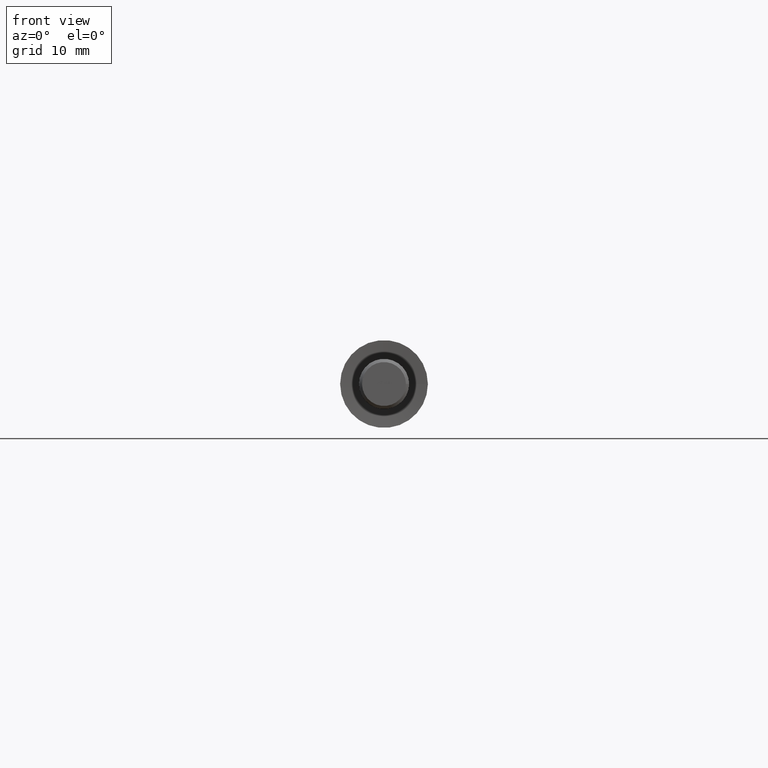
[diagram: clean part render]
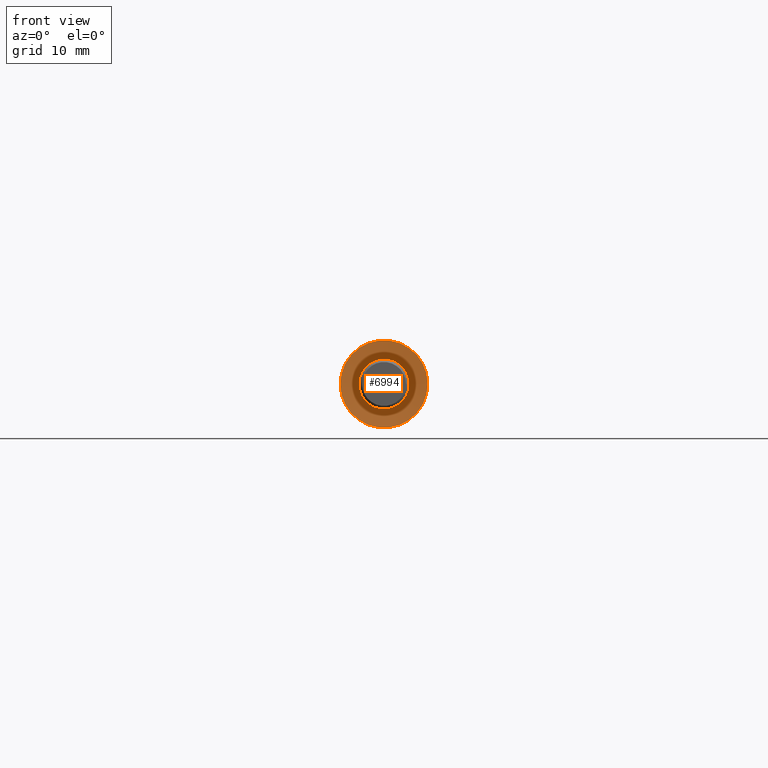
[diagram: same view with one face highlighted and labeled with its STEP entity id]
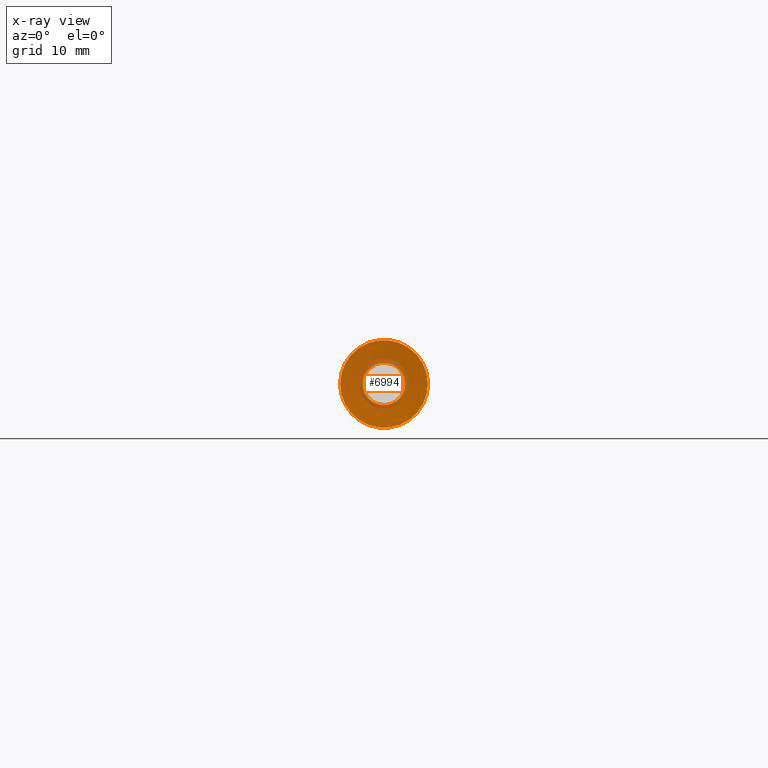
[diagram: x-ray of the same camera — body ghosted, the highlighted face saturated]
A machine part, front view. The second image highlights one B-rep face of the part: STEP entity #6994.
The next image is the same camera in x-ray: the body ghosted, the highlighted face saturated — about 12% of this face is hidden behind the body in this view.
In plain terms, the highlighted conical surface has half-angle 85 deg.
Its self-contained STEP definition (entity closure, byte-faithful):
#89 = CARTESIAN_POINT ( 'NONE',  ( 7.000000000000005329, 1.172305183540057433E-32, 0.000000000000000000 ) ) ;
#290 = FACE_OUTER_BOUND ( 'NONE', #5023, .T. ) ;
#905 = DIRECTION ( 'NONE',  ( 1.674721690771509348E-33, -1.000000000000000000, -0.000000000000000000 ) ) ;
#1241 = CIRCLE ( 'NONE', #2899, 7.000000000000005329 ) ;
#1532 = CIRCLE ( 'NONE', #7406, 3.372865949385575046 ) ;
#2194 = CARTESIAN_POINT ( 'NONE',  ( 3.372865949385575046, 0.3173331105176275257, 0.000000000000000000 ) ) ;
#2899 = AXIS2_PLACEMENT_3D ( 'NONE', #3957, #12561, #7811 ) ;
#3957 = CARTESIAN_POINT ( 'NONE',  ( 1.674721690771509485E-31, 0.000000000000000000, 0.000000000000000000 ) ) ;
#3980 = DIRECTION ( 'NONE',  ( 1.674721690771509348E-33, -1.000000000000000000, -0.000000000000000000 ) ) ;
#4705 = CARTESIAN_POINT ( 'NONE',  ( 1.669407244337670838E-31, 0.3173331105176275257, 0.000000000000000000 ) ) ;
#4756 = DIRECTION ( 'NONE',  ( 1.000000000000000000, 0.000000000000000000, 0.000000000000000000 ) ) ;
#4797 = CARTESIAN_POINT ( 'NONE',  ( 1.669407244337670838E-31, 0.3173331105176275257, 0.000000000000000000 ) ) ;
#5023 = EDGE_LOOP ( 'NONE', ( #8442 ) ) ;
#5033 = CONICAL_SURFACE ( 'NONE', #11183, 3.372865949385575046, 1.483529864195180181 ) ;
#6260 = FACE_BOUND ( 'NONE', #12440, .T. ) ;
#6994 = ADVANCED_FACE ( 'NONE', ( #290, #6260 ), #5033, .F. ) ;
#7318 = EDGE_CURVE ( 'NONE', #10274, #10274, #1532, .T. ) ;
#7406 = AXIS2_PLACEMENT_3D ( 'NONE', #4797, #905, #4756 ) ;
#7811 = DIRECTION ( 'NONE',  ( 1.000000000000000000, 1.674721690771509348E-33, 0.000000000000000000 ) ) ;
#8442 = ORIENTED_EDGE ( 'NONE', *, *, #10119, .T. ) ;
#8452 = VERTEX_POINT ( 'NONE', #89 ) ;
#10119 = EDGE_CURVE ( 'NONE', #8452, #8452, #1241, .T. ) ;
#10274 = VERTEX_POINT ( 'NONE', #2194 ) ;
#11183 = AXIS2_PLACEMENT_3D ( 'NONE', #4705, #3980, #11828 ) ;
#11828 = DIRECTION ( 'NONE',  ( 1.000000000000000000, 0.000000000000000000, 0.000000000000000000 ) ) ;
#12110 = ORIENTED_EDGE ( 'NONE', *, *, #7318, .F. ) ;
#12440 = EDGE_LOOP ( 'NONE', ( #12110 ) ) ;
#12561 = DIRECTION ( 'NONE',  ( 1.674721690771509348E-33, -1.000000000000000000, -0.000000000000000000 ) ) ;